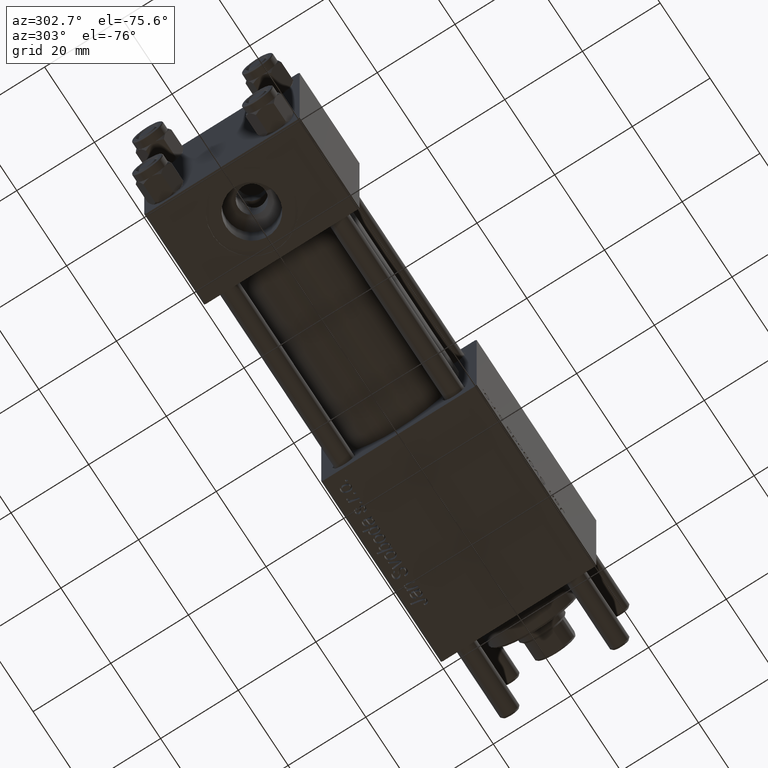
[diagram: clean part render]
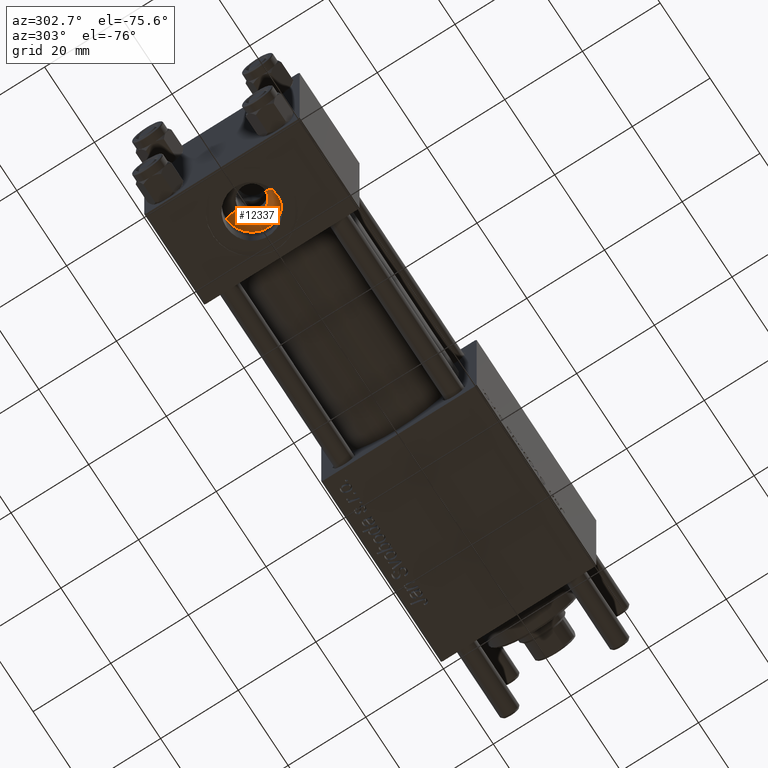
[diagram: same view with one face highlighted and labeled with its STEP entity id]
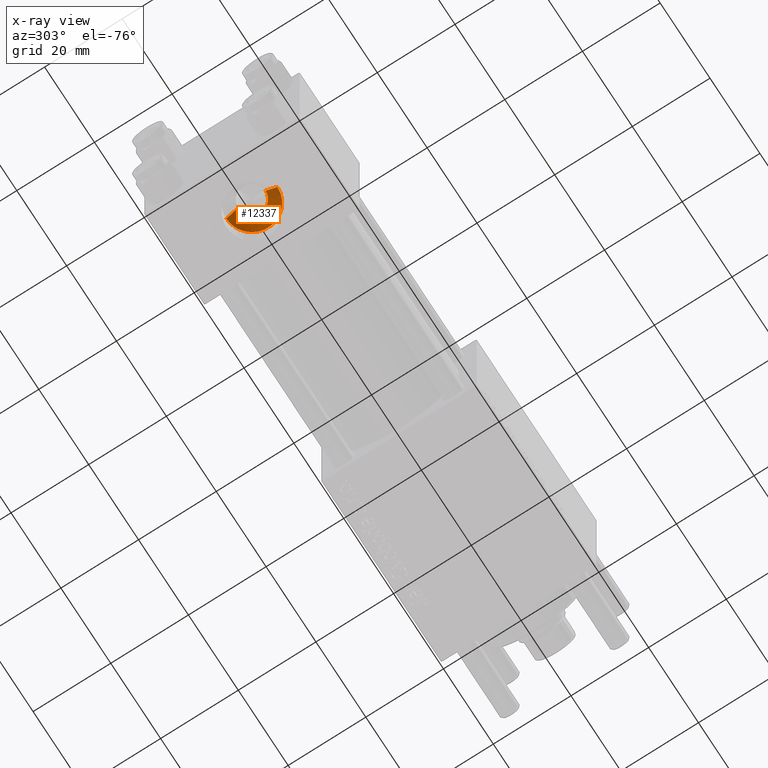
[diagram: x-ray of the same camera — body ghosted, the highlighted face saturated]
A machine part, auxiliary view. The second image highlights one B-rep face of the part: STEP entity #12337.
The next image is the same camera in x-ray: the body ghosted, the highlighted face saturated — about 0% of this face is hidden behind the body in this view.
In plain terms, the highlighted conical surface has half-angle 45 deg.
Its self-contained STEP definition (entity closure, byte-faithful):
#781 = CARTESIAN_POINT ( 'NONE',  ( 12.00000000000000000, -3.440000000000003055, -9.200000000000004619 ) ) ;
#2684 = AXIS2_PLACEMENT_3D ( 'NONE', #3049, #51817, #21088 ) ;
#3049 = CARTESIAN_POINT ( 'NONE',  ( 12.00000000000000000, -3.065521756875487066E-15, -9.200000000000004619 ) ) ;
#7161 = DIRECTION ( 'NONE',  ( 0.000000000000000000, 0.7071067811865472397, -0.7071067811865479058 ) ) ;
#7985 = VERTEX_POINT ( 'NONE', #56191 ) ;
#8314 = CIRCLE ( 'NONE', #57365, 6.580000000000000071 ) ;
#8513 = DIRECTION ( 'NONE',  ( -0.000000000000000000, 1.734723475976807587E-16, 1.000000000000000000 ) ) ;
#12080 = CARTESIAN_POINT ( 'NONE',  ( 12.00000000000000000, -3.610224928332204888E-15, -12.34000000000000696 ) ) ;
#12337 = ADVANCED_FACE ( 'NONE', ( #42664 ), #19642, .F. ) ;
#13557 = DIRECTION ( 'NONE',  ( 0.000000000000000000, -1.734723475976807587E-16, -1.000000000000000000 ) ) ;
#15187 = CIRCLE ( 'NONE', #54786, 3.500000000000000000 ) ;
#16114 = CARTESIAN_POINT ( 'NONE',  ( 12.00000000000000000, -3.500000000000003109, -9.260000000000006892 ) ) ;
#16690 = EDGE_CURVE ( 'NONE', #17715, #7985, #41275, .T. ) ;
#17522 = CARTESIAN_POINT ( 'NONE',  ( 12.00000000000000000, 3.439999999999996838, -9.200000000000004619 ) ) ;
#17715 = VERTEX_POINT ( 'NONE', #16114 ) ;
#19101 = ORIENTED_EDGE ( 'NONE', *, *, #38429, .F. ) ;
#19642 = CONICAL_SURFACE ( 'NONE', #2684, 3.439999999999999947, 0.7853981633974479459 ) ;
#19948 = ORIENTED_EDGE ( 'NONE', *, *, #25795, .F. ) ;
#21088 = DIRECTION ( 'NONE',  ( 0.000000000000000000, 1.000000000000000000, 0.000000000000000000 ) ) ;
#22723 = VERTEX_POINT ( 'NONE', #51680 ) ;
#23880 = ORIENTED_EDGE ( 'NONE', *, *, #54307, .T. ) ;
#25634 = ORIENTED_EDGE ( 'NONE', *, *, #16690, .F. ) ;
#25795 = EDGE_CURVE ( 'NONE', #7985, #47028, #8314, .T. ) ;
#33698 = EDGE_LOOP ( 'NONE', ( #25634, #19101, #23880, #19948 ) ) ;
#34827 = DIRECTION ( 'NONE',  ( 0.000000000000000000, 1.000000000000000000, -2.636357866226150465E-16 ) ) ;
#38429 = EDGE_CURVE ( 'NONE', #22723, #17715, #15187, .T. ) ;
#39385 = CARTESIAN_POINT ( 'NONE',  ( 12.00000000000000000, 6.579999999999996518, -12.34000000000000874 ) ) ;
#40151 = DIRECTION ( 'NONE',  ( 0.000000000000000000, 1.000000000000000000, 0.000000000000000000 ) ) ;
#41275 = LINE ( 'NONE', #781, #56600 ) ;
#42664 = FACE_OUTER_BOUND ( 'NONE', #33698, .T. ) ;
#45118 = DIRECTION ( 'NONE',  ( 8.659560562354931626E-17, -0.7071067811865474617, -0.7071067811865476838 ) ) ;
#47028 = VERTEX_POINT ( 'NONE', #39385 ) ;
#49011 = CARTESIAN_POINT ( 'NONE',  ( 12.00000000000000000, -3.075930097731347908E-15, -9.260000000000006892 ) ) ;
#51680 = CARTESIAN_POINT ( 'NONE',  ( 12.00000000000000000, 3.499999999999996891, -9.260000000000006892 ) ) ;
#51817 = DIRECTION ( 'NONE',  ( 0.000000000000000000, -1.734723475976807587E-16, -1.000000000000000000 ) ) ;
#53274 = LINE ( 'NONE', #17522, #57502 ) ;
#54307 = EDGE_CURVE ( 'NONE', #22723, #47028, #53274, .T. ) ;
#54786 = AXIS2_PLACEMENT_3D ( 'NONE', #49011, #13557, #40151 ) ;
#56191 = CARTESIAN_POINT ( 'NONE',  ( 12.00000000000000000, -6.580000000000003624, -12.34000000000000519 ) ) ;
#56600 = VECTOR ( 'NONE', #45118, 1000.000000000000000 ) ;
#57365 = AXIS2_PLACEMENT_3D ( 'NONE', #12080, #8513, #34827 ) ;
#57502 = VECTOR ( 'NONE', #7161, 1000.000000000000000 ) ;